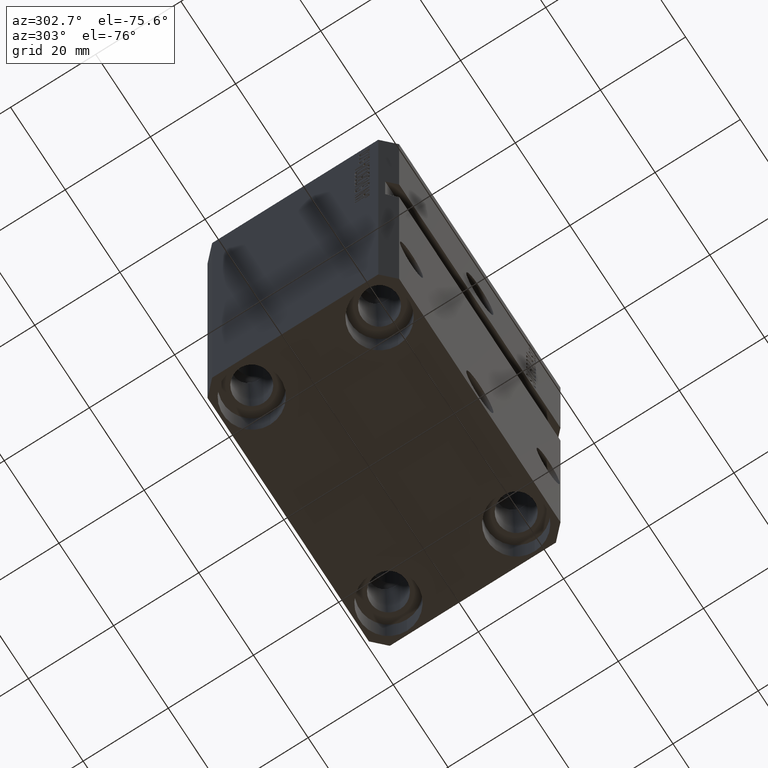
[diagram: clean part render]
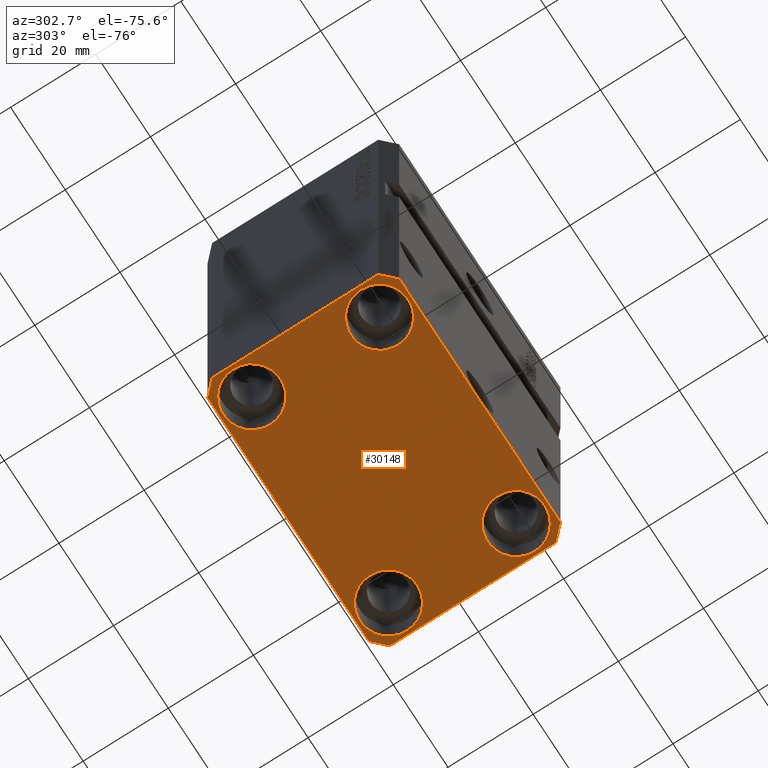
[diagram: same view with one face highlighted and labeled with its STEP entity id]
A machine part, auxiliary view. The second image highlights one B-rep face of the part: STEP entity #30148.
In plain terms, the highlighted planar face has unit normal (0, 0, 1).
Its self-contained STEP definition (entity closure, byte-faithful):
#154 = DIRECTION ( 'NONE',  ( 1.000000000000000000, 0.000000000000000000, 0.000000000000000000 ) ) ;
#614 = CARTESIAN_POINT ( 'NONE',  ( 29.49999999999650413, -22.49999999999949196, -107.0000000000000000 ) ) ;
#813 = EDGE_CURVE ( 'NONE', #31409, #6666, #25781, .T. ) ;
#1853 = LINE ( 'NONE', #43483, #19087 ) ;
#2145 = EDGE_LOOP ( 'NONE', ( #8708, #33271 ) ) ;
#3275 = CARTESIAN_POINT ( 'NONE',  ( -29.49999999999650413, -22.49999999999949907, -107.0000000000000000 ) ) ;
#3277 = LINE ( 'NONE', #17145, #10070 ) ;
#3335 = CARTESIAN_POINT ( 'NONE',  ( 24.99999999999999645, 15.00000000000000888, -107.0000000000000000 ) ) ;
#3689 = DIRECTION ( 'NONE',  ( 1.000000000000000000, 0.000000000000000000, 0.000000000000000000 ) ) ;
#4628 = CARTESIAN_POINT ( 'NONE',  ( 32.49999999999651124, -19.49999999999949196, -107.0000000000000000 ) ) ;
#5028 = CARTESIAN_POINT ( 'NONE',  ( -18.24999999995845812, -15.00000000000000000, -107.0000000000000000 ) ) ;
#5142 = CIRCLE ( 'NONE', #21072, 6.749999999977465137 ) ;
#5195 = CARTESIAN_POINT ( 'NONE',  ( -32.49999999999650413, -19.49999999999949907, -107.0000000000000000 ) ) ;
#5433 = VERTEX_POINT ( 'NONE', #5028 ) ;
#5533 = CARTESIAN_POINT ( 'NONE',  ( -32.49999999999650413, 19.49999999999949907, -107.0000000000000000 ) ) ;
#5706 = AXIS2_PLACEMENT_3D ( 'NONE', #40506, #9335, #9561 ) ;
#6427 = CARTESIAN_POINT ( 'NONE',  ( 32.49999999999702993, 19.49999999999945999, -107.0000000000000000 ) ) ;
#6441 = EDGE_CURVE ( 'NONE', #6666, #29147, #30250, .T. ) ;
#6666 = VERTEX_POINT ( 'NONE', #5195 ) ;
#7322 = CARTESIAN_POINT ( 'NONE',  ( 25.00000000000000355, -15.00000000000000000, -107.0000000000000000 ) ) ;
#7513 = EDGE_CURVE ( 'NONE', #30435, #33505, #19627, .T. ) ;
#7773 = ORIENTED_EDGE ( 'NONE', *, *, #813, .F. ) ;
#7959 = VERTEX_POINT ( 'NONE', #17673 ) ;
#8708 = ORIENTED_EDGE ( 'NONE', *, *, #37351, .T. ) ;
#8961 = AXIS2_PLACEMENT_3D ( 'NONE', #21076, #21302, #38617 ) ;
#9054 = EDGE_CURVE ( 'NONE', #35726, #26695, #15717, .T. ) ;
#9073 = VECTOR ( 'NONE', #12971, 1000.000000000000114 ) ;
#9335 = DIRECTION ( 'NONE',  ( -0.000000000000000000, -0.000000000000000000, 1.000000000000000000 ) ) ;
#9561 = DIRECTION ( 'NONE',  ( 1.000000000000000000, 0.000000000000000000, 0.000000000000000000 ) ) ;
#9583 = DIRECTION ( 'NONE',  ( 1.334402673828349134E-14, 1.000000000000000000, 0.000000000000000000 ) ) ;
#10070 = VECTOR ( 'NONE', #31015, 1000.000000000000114 ) ;
#10243 = ORIENTED_EDGE ( 'NONE', *, *, #34962, .T. ) ;
#11038 = VECTOR ( 'NONE', #27148, 1000.000000000000000 ) ;
#11195 = VERTEX_POINT ( 'NONE', #34230 ) ;
#11788 = ORIENTED_EDGE ( 'NONE', *, *, #22392, .F. ) ;
#12971 = DIRECTION ( 'NONE',  ( 0.7071067811865474617, -0.7071067811865474617, 0.000000000000000000 ) ) ;
#13067 = LINE ( 'NONE', #3275, #11038 ) ;
#13092 = AXIS2_PLACEMENT_3D ( 'NONE', #27799, #38506, #31214 ) ;
#13257 = VERTEX_POINT ( 'NONE', #614 ) ;
#14378 = LINE ( 'NONE', #35048, #30512 ) ;
#14817 = EDGE_CURVE ( 'NONE', #35365, #28280, #32572, .T. ) ;
#14968 = ORIENTED_EDGE ( 'NONE', *, *, #32567, .F. ) ;
#15698 = CARTESIAN_POINT ( 'NONE',  ( -32.49999999999650413, 19.49999999999949907, -107.0000000000000000 ) ) ;
#15717 = CIRCLE ( 'NONE', #16413, 6.750000000022533087 ) ;
#15754 = EDGE_CURVE ( 'NONE', #5433, #38849, #22528, .T. ) ;
#15984 = EDGE_CURVE ( 'NONE', #21425, #30435, #43714, .T. ) ;
#16413 = AXIS2_PLACEMENT_3D ( 'NONE', #16729, #30595, #17401 ) ;
#16729 = CARTESIAN_POINT ( 'NONE',  ( -25.00000000000000355, 15.00000000000000000, -107.0000000000000000 ) ) ;
#17145 = CARTESIAN_POINT ( 'NONE',  ( -29.49999999999650413, 22.49999999999949907, -107.0000000000000000 ) ) ;
#17401 = DIRECTION ( 'NONE',  ( 1.000000000000000000, 0.000000000000000000, 0.000000000000000000 ) ) ;
#17410 = EDGE_CURVE ( 'NONE', #26695, #35726, #26023, .T. ) ;
#17673 = CARTESIAN_POINT ( 'NONE',  ( -29.49999999999650413, 22.49999999999949907, -107.0000000000000000 ) ) ;
#18610 = CARTESIAN_POINT ( 'NONE',  ( -31.75000000004154899, -15.00000000000000000, -107.0000000000000000 ) ) ;
#18667 = EDGE_CURVE ( 'NONE', #7959, #31409, #3277, .T. ) ;
#18740 = DIRECTION ( 'NONE',  ( 0.000000000000000000, -1.000000000000000000, 0.000000000000000000 ) ) ;
#19087 = VECTOR ( 'NONE', #36410, 1000.000000000000000 ) ;
#19278 = ORIENTED_EDGE ( 'NONE', *, *, #30502, .T. ) ;
#19591 = ORIENTED_EDGE ( 'NONE', *, *, #6441, .F. ) ;
#19627 = LINE ( 'NONE', #6427, #41069 ) ;
#19812 = ORIENTED_EDGE ( 'NONE', *, *, #23274, .T. ) ;
#21072 = AXIS2_PLACEMENT_3D ( 'NONE', #7322, #31647, #3689 ) ;
#21076 = CARTESIAN_POINT ( 'NONE',  ( 25.00000000000000355, -15.00000000000000000, -107.0000000000000000 ) ) ;
#21302 = DIRECTION ( 'NONE',  ( -0.000000000000000000, -0.000000000000000000, 1.000000000000000000 ) ) ;
#21425 = VERTEX_POINT ( 'NONE', #4628 ) ;
#21789 = CARTESIAN_POINT ( 'NONE',  ( -31.75000000002253842, 15.00000000000000000, -107.0000000000000000 ) ) ;
#22180 = CARTESIAN_POINT ( 'NONE',  ( 31.74999999997746869, -15.00000000000000000, -107.0000000000000000 ) ) ;
#22392 = EDGE_CURVE ( 'NONE', #33505, #7959, #14378, .T. ) ;
#22528 = CIRCLE ( 'NONE', #13092, 6.750000000041541881 ) ;
#22763 = FACE_BOUND ( 'NONE', #23601, .T. ) ;
#22767 = AXIS2_PLACEMENT_3D ( 'NONE', #3335, #23566, #154 ) ;
#22889 = DIRECTION ( 'NONE',  ( 1.000000000000000000, 0.000000000000000000, 0.000000000000000000 ) ) ;
#23274 = EDGE_CURVE ( 'NONE', #11195, #43939, #5142, .T. ) ;
#23566 = DIRECTION ( 'NONE',  ( -0.000000000000000000, -0.000000000000000000, 1.000000000000000000 ) ) ;
#23601 = EDGE_LOOP ( 'NONE', ( #19812, #19278 ) ) ;
#23945 = VECTOR ( 'NONE', #9583, 1000.000000000000000 ) ;
#24916 = CIRCLE ( 'NONE', #8961, 6.749999999977465137 ) ;
#25736 = AXIS2_PLACEMENT_3D ( 'NONE', #39314, #28381, #42268 ) ;
#25744 = FACE_BOUND ( 'NONE', #39347, .T. ) ;
#25781 = LINE ( 'NONE', #5533, #30091 ) ;
#25977 = CARTESIAN_POINT ( 'NONE',  ( 0.000000000000000000, 0.000000000000000000, -107.0000000000000000 ) ) ;
#26023 = CIRCLE ( 'NONE', #34725, 6.750000000022533087 ) ;
#26194 = PLANE ( 'NONE',  #28562 ) ;
#26534 = CARTESIAN_POINT ( 'NONE',  ( -18.24999999997747224, 15.00000000000000000, -107.0000000000000000 ) ) ;
#26695 = VERTEX_POINT ( 'NONE', #26534 ) ;
#27023 = EDGE_CURVE ( 'NONE', #29147, #13257, #13067, .T. ) ;
#27148 = DIRECTION ( 'NONE',  ( 1.000000000000000000, 1.176083712526788232E-16, 0.000000000000000000 ) ) ;
#27776 = DIRECTION ( 'NONE',  ( -1.000000000000000000, -2.352167425053553784E-16, 0.000000000000000000 ) ) ;
#27799 = CARTESIAN_POINT ( 'NONE',  ( -25.00000000000000355, -15.00000000000000000, -107.0000000000000000 ) ) ;
#28280 = VERTEX_POINT ( 'NONE', #40998 ) ;
#28381 = DIRECTION ( 'NONE',  ( -0.000000000000000000, -0.000000000000000000, 1.000000000000000000 ) ) ;
#28562 = AXIS2_PLACEMENT_3D ( 'NONE', #25977, #40073, #43500 ) ;
#28816 = ORIENTED_EDGE ( 'NONE', *, *, #9054, .T. ) ;
#29147 = VERTEX_POINT ( 'NONE', #37869 ) ;
#29608 = FACE_OUTER_BOUND ( 'NONE', #43112, .T. ) ;
#30045 = FACE_BOUND ( 'NONE', #33496, .T. ) ;
#30091 = VECTOR ( 'NONE', #18740, 1000.000000000000000 ) ;
#30148 = ADVANCED_FACE ( 'NONE', ( #36211, #22763, #25744, #30045, #29608 ), #26194, .F. ) ;
#30250 = LINE ( 'NONE', #44140, #9073 ) ;
#30435 = VERTEX_POINT ( 'NONE', #32842 ) ;
#30502 = EDGE_CURVE ( 'NONE', #43939, #11195, #24916, .T. ) ;
#30512 = VECTOR ( 'NONE', #27776, 1000.000000000000000 ) ;
#30595 = DIRECTION ( 'NONE',  ( -0.000000000000000000, -0.000000000000000000, 1.000000000000000000 ) ) ;
#31015 = DIRECTION ( 'NONE',  ( -0.7071067811865474617, -0.7071067811865474617, 0.000000000000000000 ) ) ;
#31214 = DIRECTION ( 'NONE',  ( 1.000000000000000000, 0.000000000000000000, 0.000000000000000000 ) ) ;
#31409 = VERTEX_POINT ( 'NONE', #15698 ) ;
#31647 = DIRECTION ( 'NONE',  ( -0.000000000000000000, -0.000000000000000000, 1.000000000000000000 ) ) ;
#32326 = ORIENTED_EDGE ( 'NONE', *, *, #14817, .T. ) ;
#32567 = EDGE_CURVE ( 'NONE', #13257, #21425, #1853, .T. ) ;
#32572 = CIRCLE ( 'NONE', #5706, 6.749999999958452790 ) ;
#32773 = ORIENTED_EDGE ( 'NONE', *, *, #7513, .F. ) ;
#32842 = CARTESIAN_POINT ( 'NONE',  ( 32.49999999999702993, 19.49999999999945999, -107.0000000000000000 ) ) ;
#33177 = ORIENTED_EDGE ( 'NONE', *, *, #15984, .F. ) ;
#33271 = ORIENTED_EDGE ( 'NONE', *, *, #15754, .T. ) ;
#33496 = EDGE_LOOP ( 'NONE', ( #28816, #36640 ) ) ;
#33505 = VERTEX_POINT ( 'NONE', #38548 ) ;
#33790 = DIRECTION ( 'NONE',  ( -0.000000000000000000, -0.000000000000000000, 1.000000000000000000 ) ) ;
#34230 = CARTESIAN_POINT ( 'NONE',  ( 18.25000000002253842, -15.00000000000000000, -107.0000000000000000 ) ) ;
#34725 = AXIS2_PLACEMENT_3D ( 'NONE', #39767, #33790, #22889 ) ;
#34962 = EDGE_CURVE ( 'NONE', #28280, #35365, #38769, .T. ) ;
#35048 = CARTESIAN_POINT ( 'NONE',  ( 29.49999999999707967, 22.49999999999951328, -107.0000000000000000 ) ) ;
#35163 = CIRCLE ( 'NONE', #25736, 6.750000000041541881 ) ;
#35365 = VERTEX_POINT ( 'NONE', #35950 ) ;
#35726 = VERTEX_POINT ( 'NONE', #21789 ) ;
#35950 = CARTESIAN_POINT ( 'NONE',  ( 18.25000000004154543, 15.00000000000000888, -107.0000000000000000 ) ) ;
#36211 = FACE_BOUND ( 'NONE', #2145, .T. ) ;
#36410 = DIRECTION ( 'NONE',  ( 0.7071067811865483499, 0.7071067811865466846, 0.000000000000000000 ) ) ;
#36640 = ORIENTED_EDGE ( 'NONE', *, *, #17410, .T. ) ;
#36932 = ORIENTED_EDGE ( 'NONE', *, *, #18667, .F. ) ;
#37351 = EDGE_CURVE ( 'NONE', #38849, #5433, #35163, .T. ) ;
#37433 = ORIENTED_EDGE ( 'NONE', *, *, #27023, .F. ) ;
#37869 = CARTESIAN_POINT ( 'NONE',  ( -29.49999999999650413, -22.49999999999949907, -107.0000000000000000 ) ) ;
#38506 = DIRECTION ( 'NONE',  ( -0.000000000000000000, -0.000000000000000000, 1.000000000000000000 ) ) ;
#38548 = CARTESIAN_POINT ( 'NONE',  ( 29.49999999999707967, 22.49999999999951328, -107.0000000000000000 ) ) ;
#38617 = DIRECTION ( 'NONE',  ( 1.000000000000000000, 0.000000000000000000, 0.000000000000000000 ) ) ;
#38769 = CIRCLE ( 'NONE', #22767, 6.749999999958452790 ) ;
#38849 = VERTEX_POINT ( 'NONE', #18610 ) ;
#39314 = CARTESIAN_POINT ( 'NONE',  ( -25.00000000000000355, -15.00000000000000000, -107.0000000000000000 ) ) ;
#39347 = EDGE_LOOP ( 'NONE', ( #32326, #10243 ) ) ;
#39767 = CARTESIAN_POINT ( 'NONE',  ( -25.00000000000000355, 15.00000000000000000, -107.0000000000000000 ) ) ;
#40073 = DIRECTION ( 'NONE',  ( 0.000000000000000000, 0.000000000000000000, 1.000000000000000000 ) ) ;
#40304 = CARTESIAN_POINT ( 'NONE',  ( 32.49999999999651124, -19.49999999999949196, -107.0000000000000000 ) ) ;
#40506 = CARTESIAN_POINT ( 'NONE',  ( 24.99999999999999645, 15.00000000000000888, -107.0000000000000000 ) ) ;
#40567 = DIRECTION ( 'NONE',  ( -0.7071067811865352493, 0.7071067811865597852, 0.000000000000000000 ) ) ;
#40998 = CARTESIAN_POINT ( 'NONE',  ( 31.74999999995845101, 15.00000000000000888, -107.0000000000000000 ) ) ;
#41069 = VECTOR ( 'NONE', #40567, 1000.000000000000000 ) ;
#42268 = DIRECTION ( 'NONE',  ( 1.000000000000000000, 0.000000000000000000, 0.000000000000000000 ) ) ;
#43112 = EDGE_LOOP ( 'NONE', ( #11788, #32773, #33177, #14968, #37433, #19591, #7773, #36932 ) ) ;
#43483 = CARTESIAN_POINT ( 'NONE',  ( 29.49999999999650413, -22.49999999999949196, -107.0000000000000000 ) ) ;
#43500 = DIRECTION ( 'NONE',  ( 1.000000000000000000, 0.000000000000000000, -0.000000000000000000 ) ) ;
#43714 = LINE ( 'NONE', #40304, #23945 ) ;
#43939 = VERTEX_POINT ( 'NONE', #22180 ) ;
#44140 = CARTESIAN_POINT ( 'NONE',  ( -32.49999999999650413, -19.49999999999949907, -107.0000000000000000 ) ) ;